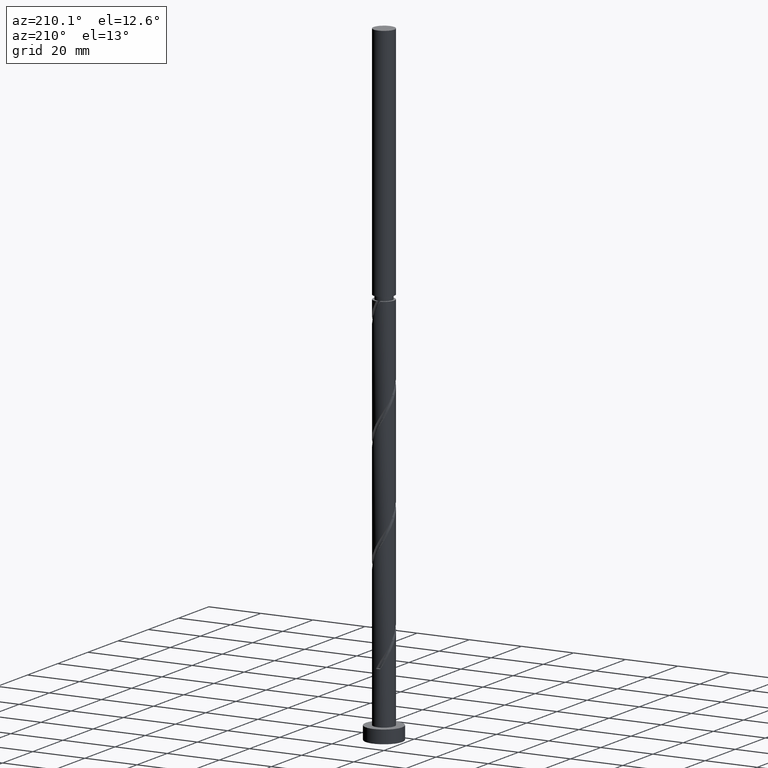
[diagram: clean part render]
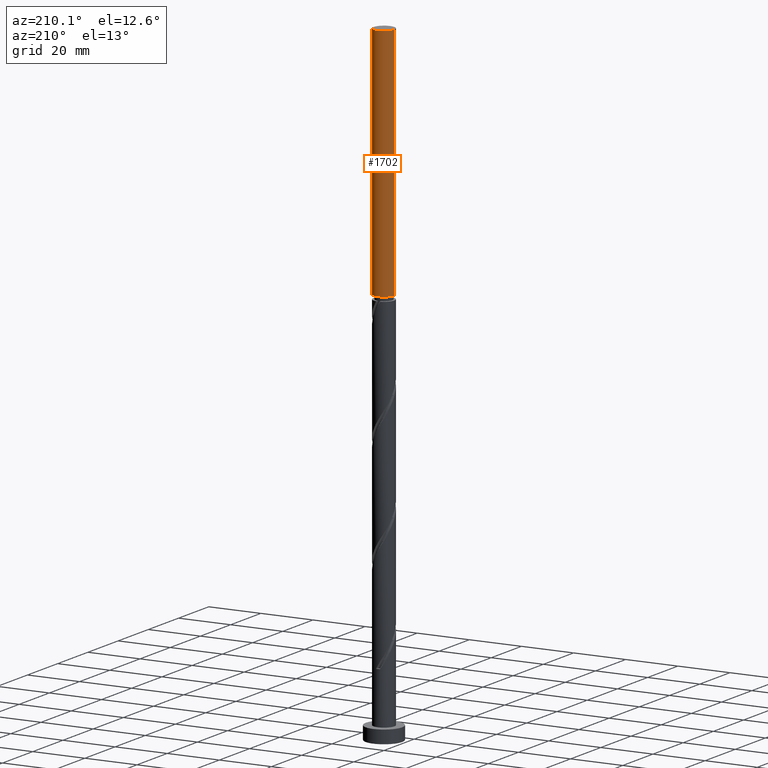
[diagram: same view with one face highlighted and labeled with its STEP entity id]
A machine part, auxiliary view. The second image highlights one B-rep face of the part: STEP entity #1702.
In plain terms, the highlighted cylindrical surface (edge-blend (fillet) strip) has radius 4 mm, axis along (-0, -0, -1).
Its self-contained STEP definition (entity closure, byte-faithful):
#30 = VERTEX_POINT ( 'NONE', #923 ) ;
#84 = DIRECTION ( 'NONE',  ( -1.000000000000000000, 0.000000000000000000, 0.000000000000000000 ) ) ;
#134 = EDGE_CURVE ( 'NONE', #698, #159, #464, .T. ) ;
#139 = DIRECTION ( 'NONE',  ( 0.000000000000000000, 0.000000000000000000, 1.000000000000000000 ) ) ;
#153 = DIRECTION ( 'NONE',  ( -0.000000000000000000, -0.000000000000000000, -1.000000000000000000 ) ) ;
#159 = VERTEX_POINT ( 'NONE', #1459 ) ;
#163 = CARTESIAN_POINT ( 'NONE',  ( 0.000000000000000000, 0.000000000000000000, 242.0000000000000000 ) ) ;
#223 = DIRECTION ( 'NONE',  ( -0.000000000000000000, -0.000000000000000000, -1.000000000000000000 ) ) ;
#276 = DIRECTION ( 'NONE',  ( 1.000000000000000000, 0.000000000000000000, 0.000000000000000000 ) ) ;
#424 = AXIS2_PLACEMENT_3D ( 'NONE', #1501, #223, #84 ) ;
#448 = CIRCLE ( 'NONE', #1816, 4.000000000000000000 ) ;
#464 = LINE ( 'NONE', #1444, #716 ) ;
#474 = ORIENTED_EDGE ( 'NONE', *, *, #1256, .F. ) ;
#564 = CARTESIAN_POINT ( 'NONE',  ( -4.000000000000000000, 0.000000000000000000, 242.0000000000000000 ) ) ;
#611 = DIRECTION ( 'NONE',  ( -1.000000000000000000, 0.000000000000000000, 0.000000000000000000 ) ) ;
#698 = VERTEX_POINT ( 'NONE', #1612 ) ;
#716 = VECTOR ( 'NONE', #153, 1000.000000000000000 ) ;
#717 = DIRECTION ( 'NONE',  ( -0.000000000000000000, -0.000000000000000000, -1.000000000000000000 ) ) ;
#731 = EDGE_CURVE ( 'NONE', #698, #30, #448, .T. ) ;
#846 = LINE ( 'NONE', #564, #903 ) ;
#903 = VECTOR ( 'NONE', #717, 1000.000000000000000 ) ;
#914 = DIRECTION ( 'NONE',  ( -0.000000000000000000, -0.000000000000000000, -1.000000000000000000 ) ) ;
#923 = CARTESIAN_POINT ( 'NONE',  ( -4.000000000000000000, 0.000000000000000000, 242.0000000000000000 ) ) ;
#986 = AXIS2_PLACEMENT_3D ( 'NONE', #163, #914, #611 ) ;
#991 = CARTESIAN_POINT ( 'NONE',  ( 0.000000000000000000, 0.000000000000000000, 242.0000000000000000 ) ) ;
#1061 = VERTEX_POINT ( 'NONE', #1685 ) ;
#1221 = CIRCLE ( 'NONE', #424, 3.999999999999993339 ) ;
#1241 = ORIENTED_EDGE ( 'NONE', *, *, #1367, .F. ) ;
#1256 = EDGE_CURVE ( 'NONE', #1061, #159, #1221, .T. ) ;
#1272 = ORIENTED_EDGE ( 'NONE', *, *, #731, .F. ) ;
#1351 = ORIENTED_EDGE ( 'NONE', *, *, #134, .T. ) ;
#1367 = EDGE_CURVE ( 'NONE', #30, #1061, #846, .T. ) ;
#1391 = EDGE_LOOP ( 'NONE', ( #1272, #1351, #474, #1241 ) ) ;
#1437 = CYLINDRICAL_SURFACE ( 'NONE', #986, 4.000000000000000000 ) ;
#1444 = CARTESIAN_POINT ( 'NONE',  ( 4.000000000000000000, 4.898587196589412829E-16, 242.0000000000000000 ) ) ;
#1459 = CARTESIAN_POINT ( 'NONE',  ( 3.999999999999993339, 4.898587196589407898E-16, 151.4648890055086952 ) ) ;
#1501 = CARTESIAN_POINT ( 'NONE',  ( 0.000000000000000000, 0.000000000000000000, 151.4648890055086952 ) ) ;
#1580 = FACE_OUTER_BOUND ( 'NONE', #1391, .T. ) ;
#1612 = CARTESIAN_POINT ( 'NONE',  ( 4.000000000000000000, 4.898587196589412829E-16, 242.0000000000000000 ) ) ;
#1685 = CARTESIAN_POINT ( 'NONE',  ( -3.999999999999993339, 0.000000000000000000, 151.4648890055086952 ) ) ;
#1702 = ADVANCED_FACE ( 'NONE', ( #1580 ), #1437, .T. ) ;
#1816 = AXIS2_PLACEMENT_3D ( 'NONE', #991, #139, #276 ) ;